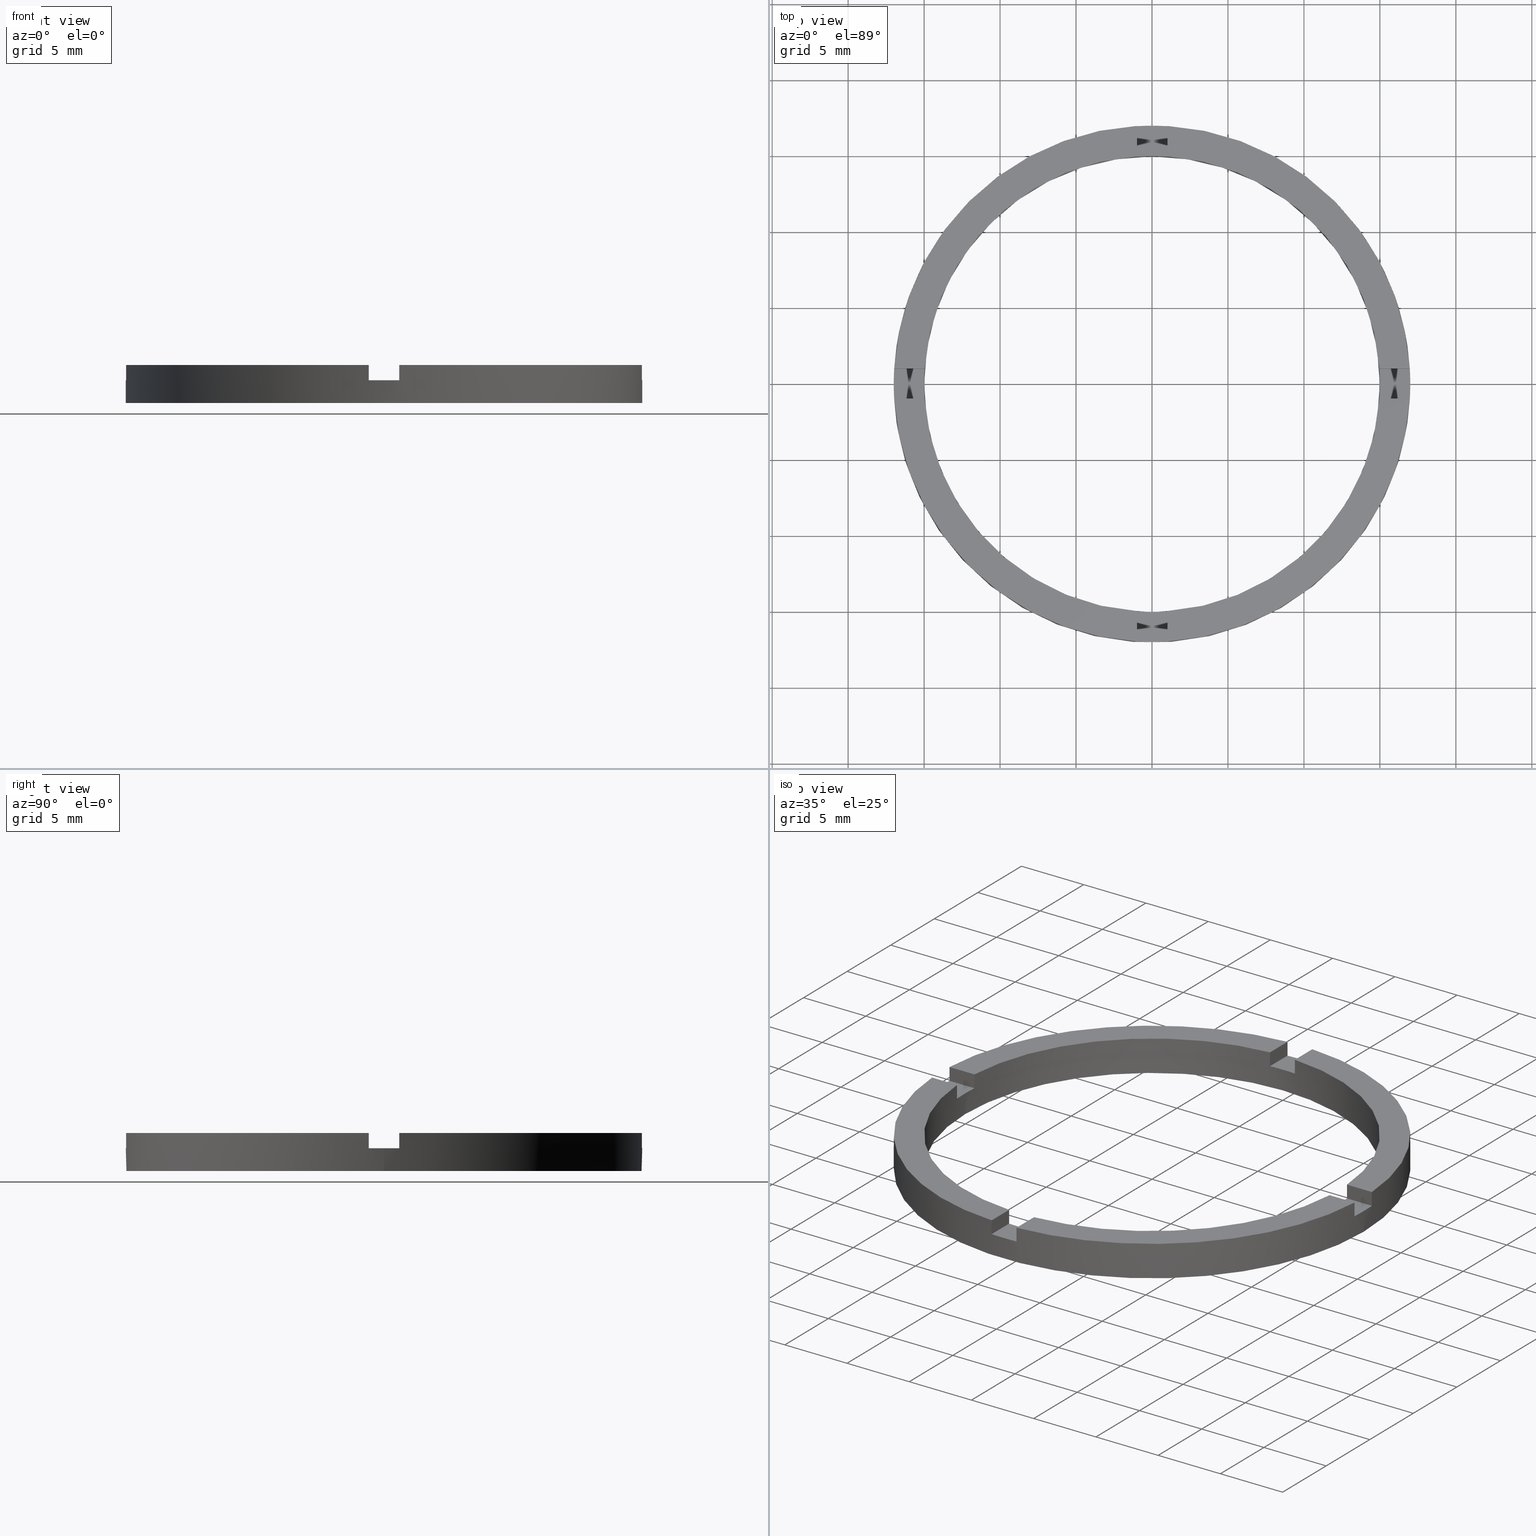
[diagram: canonical four-view strip — front | top / right | iso, engineering-drawing reading convention]
A machine part, canonical four-view strip (front | top / right | iso — engineering-drawing reading convention). The complete STEP part file that produces these views, byte-faithful:
ISO-10303-21;
HEADER;
FILE_DESCRIPTION (( 'STEP AP203' ),
    '1' );
FILE_NAME ('514073.step',
    '2024-12-26T02:34:58',
    ( 'MSI' ),
    ( '' ),
    'SwSTEP 2.0',
    'SolidWorks 2020',
    '' );
FILE_SCHEMA (( 'CONFIG_CONTROL_DESIGN' ));
ENDSEC;

DATA;
#1 = LOCAL_TIME ( 10, 34, 58.00000000000000000, #526 ) ;
#2 = EDGE_CURVE ( 'NONE', #630, #715, #52, .T. ) ;
#3 = DIRECTION ( 'NONE',  ( -1.000000000000000000, -1.301042606982605321E-16, 0.000000000000000000 ) ) ;
#4 = DIRECTION ( 'NONE',  ( -0.000000000000000000, -0.000000000000000000, -1.000000000000000000 ) ) ;
#5 = APPLICATION_CONTEXT ( 'configuration controlled 3d designs of mechanical parts and assemblies' ) ;
#6 = APPROVAL_DATE_TIME ( #518, #236 ) ;
#7 = CARTESIAN_POINT ( 'NONE',  ( -16.97056274847713908, -1.000000000000023759, 1.500000000000000000 ) ) ;
#8 = DIRECTION ( 'NONE',  ( 0.000000000000000000, 0.000000000000000000, 1.000000000000000000 ) ) ;
#9 = DIRECTION ( 'NONE',  ( 0.000000000000000000, 0.000000000000000000, 1.000000000000000000 ) ) ;
#10 = APPROVAL ( #648, 'δָ��' ) ;
#11 = DIRECTION ( 'NONE',  ( 1.000000000000000000, 0.000000000000000000, 0.000000000000000000 ) ) ;
#12 = SHAPE_DEFINITION_REPRESENTATION ( #156, #771 ) ;
#13 = DIRECTION ( 'NONE',  ( 0.000000000000000000, 0.000000000000000000, 1.000000000000000000 ) ) ;
#14 = DIRECTION ( 'NONE',  ( 0.000000000000000000, 0.000000000000000000, 1.000000000000000000 ) ) ;
#15 = PLANE ( 'NONE',  #451 ) ;
#16 = DIRECTION ( 'NONE',  ( -1.000000000000000000, -1.734723475976807341E-16, 0.000000000000000000 ) ) ;
#17 = PLANE ( 'NONE',  #248 ) ;
#18 = CARTESIAN_POINT ( 'NONE',  ( -14.96662954709576709, 0.9999999999999767963, 1.500000000000000000 ) ) ;
#19 = VECTOR ( 'NONE', #507, 1000.000000000000000 ) ;
#20 = DIRECTION ( 'NONE',  ( -1.000000000000000000, 0.000000000000000000, 0.000000000000000000 ) ) ;
#21 = VECTOR ( 'NONE', #522, 1000.000000000000000 ) ;
#22 = CARTESIAN_POINT ( 'NONE',  ( -16.97056274847714263, 0.9999999999999763522, 2.500000000000000000 ) ) ;
#23 = DIRECTION ( 'NONE',  ( 1.301042606982605321E-16, -1.000000000000000000, 0.000000000000000000 ) ) ;
#24 = VECTOR ( 'NONE', #137, 1000.000000000000000 ) ;
#25 = DIRECTION ( 'NONE',  ( 0.000000000000000000, 0.000000000000000000, 1.000000000000000000 ) ) ;
#26 = EDGE_CURVE ( 'NONE', #611, #609, #571, .T. ) ;
#27 = VECTOR ( 'NONE', #70, 1000.000000000000000 ) ;
#28 = LINE ( 'NONE', #677, #296 ) ;
#29 = CARTESIAN_POINT ( 'NONE',  ( -1.000000000000025091, 16.97056274847713908, 2.500000000000000000 ) ) ;
#30 = FACE_BOUND ( 'NONE', #736, .T. ) ;
#31 = CIRCLE ( 'NONE', #234, 17.00000000000000000 ) ;
#32 = DIRECTION ( 'NONE',  ( 0.000000000000000000, 0.000000000000000000, 1.000000000000000000 ) ) ;
#33 = AXIS2_PLACEMENT_3D ( 'NONE', #603, #13, #138 ) ;
#34 = VECTOR ( 'NONE', #84, 1000.000000000000000 ) ;
#35 = DIRECTION ( 'NONE',  ( -0.000000000000000000, -0.000000000000000000, -1.000000000000000000 ) ) ;
#36 = LINE ( 'NONE', #367, #27 ) ;
#37 = LINE ( 'NONE', #513, #19 ) ;
#38 = CIRCLE ( 'NONE', #264, 17.00000000000000000 ) ;
#39 = LINE ( 'NONE', #708, #556 ) ;
#40 = FACE_OUTER_BOUND ( 'NONE', #456, .T. ) ;
#41 = PLANE ( 'NONE',  #242 ) ;
#42 = CARTESIAN_POINT ( 'NONE',  ( 0.000000000000000000, 0.000000000000000000, 0.000000000000000000 ) ) ;
#43 = VECTOR ( 'NONE', #323, 1000.000000000000000 ) ;
#44 = CARTESIAN_POINT ( 'NONE',  ( -7.000000000000186517, -1.000000000000021982, 1.500000000000000000 ) ) ;
#45 = VECTOR ( 'NONE', #286, 1000.000000000000000 ) ;
#46 = VECTOR ( 'NONE', #653, 1000.000000000000000 ) ;
#47 = CARTESIAN_POINT ( 'NONE',  ( 6.999999999999995559, -1.000000000000159428, 2.500000000000000000 ) ) ;
#48 = FACE_OUTER_BOUND ( 'NONE', #428, .T. ) ;
#49 = LINE ( 'NONE', #692, #24 ) ;
#50 = PLANE ( 'NONE',  #134 ) ;
#51 = CIRCLE ( 'NONE', #279, 17.00000000000000000 ) ;
#52 = LINE ( 'NONE', #766, #305 ) ;
#53 = ADVANCED_FACE ( 'NONE', ( #59 ), #15, .T. ) ;
#54 = DIRECTION ( 'NONE',  ( 0.000000000000000000, -0.000000000000000000, 1.000000000000000000 ) ) ;
#55 = DATE_TIME_ROLE ( 'classification_date' ) ;
#56 = ORIENTED_EDGE ( 'NONE', *, *, #326, .T. ) ;
#57 = CC_DESIGN_DATE_AND_TIME_ASSIGNMENT ( #743, #68, ( #542 ) ) ;
#58 = ORIENTED_EDGE ( 'NONE', *, *, #751, .T. ) ;
#59 = FACE_OUTER_BOUND ( 'NONE', #741, .T. ) ;
#60 = CARTESIAN_POINT ( 'NONE',  ( 0.9999999999998363531, -7.000000000000181188, 1.500000000000000000 ) ) ;
#61 = DIRECTION ( 'NONE',  ( 0.000000000000000000, 0.000000000000000000, 1.000000000000000000 ) ) ;
#62 = PLANE ( 'NONE',  #253 ) ;
#63 = DIRECTION ( 'NONE',  ( 0.000000000000000000, 1.000000000000000000, 0.000000000000000000 ) ) ;
#64 = CARTESIAN_POINT ( 'NONE',  ( -15.00000000000000000, 0.000000000000000000, 0.000000000000000000 ) ) ;
#65 = CARTESIAN_POINT ( 'NONE',  ( 0.000000000000000000, 0.000000000000000000, 2.500000000000000000 ) ) ;
#66 = APPROVAL_ROLE ( '' ) ;
#67 = DIRECTION ( 'NONE',  ( 1.000000000000000000, 0.000000000000000000, 0.000000000000000000 ) ) ;
#68 = DATE_TIME_ROLE ( 'creation_date' ) ;
#69 = DIRECTION ( 'NONE',  ( 0.000000000000000000, 0.000000000000000000, 1.000000000000000000 ) ) ;
#70 = DIRECTION ( 'NONE',  ( 1.000000000000000000, 4.336808689942018352E-17, 0.000000000000000000 ) ) ;
#71 = CARTESIAN_POINT ( 'NONE',  ( -1.000000000000025091, 16.97056274847713908, 2.500000000000000000 ) ) ;
#72 = EDGE_CURVE ( 'NONE', #734, #190, #569, .T. ) ;
#73 = DIRECTION ( 'NONE',  ( 0.000000000000000000, -0.000000000000000000, 1.000000000000000000 ) ) ;
#74 = DIRECTION ( 'NONE',  ( -0.000000000000000000, -0.000000000000000000, -1.000000000000000000 ) ) ;
#75 = DIRECTION ( 'NONE',  ( 1.000000000000000000, 0.000000000000000000, -0.000000000000000000 ) ) ;
#76 = EDGE_CURVE ( 'NONE', #362, #347, #303, .T. ) ;
#77 = DIRECTION ( 'NONE',  ( 1.000000000000000000, 0.000000000000000000, 0.000000000000000000 ) ) ;
#78 = UNCERTAINTY_MEASURE_WITH_UNIT (LENGTH_MEASURE( 1.000000000000000082E-05 ), #333, 'distance_accuracy_value', 'NONE');
#79 = DIRECTION ( 'NONE',  ( -1.000000000000000000, 0.000000000000000000, 0.000000000000000000 ) ) ;
#80 =( GEOMETRIC_REPRESENTATION_CONTEXT ( 3 ) GLOBAL_UNCERTAINTY_ASSIGNED_CONTEXT ( ( #78 ) ) GLOBAL_UNIT_ASSIGNED_CONTEXT ( ( #333, #113, #402 ) ) REPRESENTATION_CONTEXT ( 'NONE', 'WORKASPACE' ) );
#81 = EDGE_CURVE ( 'NONE', #450, #469, #269, .T. ) ;
#82 = CARTESIAN_POINT ( 'NONE',  ( 14.96662954709575466, -1.000000000000158984, 2.500000000000000000 ) ) ;
#83 = EDGE_CURVE ( 'NONE', #468, #626, #28, .T. ) ;
#84 = DIRECTION ( 'NONE',  ( -0.000000000000000000, -0.000000000000000000, -1.000000000000000000 ) ) ;
#85 = CARTESIAN_POINT ( 'NONE',  ( 17.00000000000000000, 2.081899558550500280E-15, 1.500000000000000000 ) ) ;
#86 = AXIS2_PLACEMENT_3D ( 'NONE', #769, #150, #448 ) ;
#87 = DIRECTION ( 'NONE',  ( -0.000000000000000000, -0.000000000000000000, -1.000000000000000000 ) ) ;
#88 = DIRECTION ( 'NONE',  ( 1.000000000000000000, 0.000000000000000000, -0.000000000000000000 ) ) ;
#89 = ORIENTED_EDGE ( 'NONE', *, *, #592, .F. ) ;
#90 = AXIS2_PLACEMENT_3D ( 'NONE', #557, #599, #211 ) ;
#91 = ORIENTED_EDGE ( 'NONE', *, *, #76, .T. ) ;
#92 = EDGE_CURVE ( 'NONE', #157, #189, #49, .T. ) ;
#93 = ORIENTED_EDGE ( 'NONE', *, *, #263, .F. ) ;
#94 = AXIS2_PLACEMENT_3D ( 'NONE', #209, #511, #287 ) ;
#95 = ORIENTED_EDGE ( 'NONE', *, *, #733, .F. ) ;
#96 = DESIGN_CONTEXT ( 'detailed design', #5, 'design' ) ;
#97 = ORIENTED_EDGE ( 'NONE', *, *, #578, .T. ) ;
#98 = ORIENTED_EDGE ( 'NONE', *, *, #592, .T. ) ;
#99 = AXIS2_PLACEMENT_3D ( 'NONE', #268, #388, #704 ) ;
#100 = ORIENTED_EDGE ( 'NONE', *, *, #647, .F. ) ;
#101 = ORIENTED_EDGE ( 'NONE', *, *, #683, .T. ) ;
#102 = DIRECTION ( 'NONE',  ( -0.000000000000000000, 0.000000000000000000, 1.000000000000000000 ) ) ;
#103 = ORIENTED_EDGE ( 'NONE', *, *, #427, .F. ) ;
#104 = EDGE_CURVE ( 'NONE', #706, #215, #290, .T. ) ;
#105 = DIRECTION ( 'NONE',  ( 1.000000000000000000, 0.000000000000000000, -0.000000000000000000 ) ) ;
#106 = APPROVAL_STATUS ( 'not_yet_approved' ) ;
#107 = EDGE_LOOP ( 'NONE', ( #352, #180, #192, #179 ) ) ;
#108 = ORIENTED_EDGE ( 'NONE', *, *, #544, .T. ) ;
#109 = EDGE_CURVE ( 'NONE', #450, #365, #38, .T. ) ;
#110 = ORIENTED_EDGE ( 'NONE', *, *, #289, .T. ) ;
#111 = ORIENTED_EDGE ( 'NONE', *, *, #198, .F. ) ;
#112 = AXIS2_PLACEMENT_3D ( 'NONE', #748, #73, #685 ) ;
#113 =( NAMED_UNIT ( * ) PLANE_ANGLE_UNIT ( ) SI_UNIT ( $, .RADIAN. ) );
#114 = ORIENTED_EDGE ( 'NONE', *, *, #508, .T. ) ;
#115 = ORIENTED_EDGE ( 'NONE', *, *, #683, .F. ) ;
#116 = VERTEX_POINT ( 'NONE', #755 ) ;
#117 = CARTESIAN_POINT ( 'NONE',  ( -1.000000000000025091, 14.96662954709576354, 2.500000000000000000 ) ) ;
#118 = DIRECTION ( 'NONE',  ( 1.734723475976807341E-16, -1.000000000000000000, 0.000000000000000000 ) ) ;
#119 = EDGE_LOOP ( 'NONE', ( #746, #419, #492, #455 ) ) ;
#120 = DIRECTION ( 'NONE',  ( 0.000000000000000000, 0.000000000000000000, 1.000000000000000000 ) ) ;
#121 = ORIENTED_EDGE ( 'NONE', *, *, #334, .F. ) ;
#122 = ORIENTED_EDGE ( 'NONE', *, *, #104, .T. ) ;
#123 = VERTEX_POINT ( 'NONE', #310 ) ;
#124 = CARTESIAN_POINT ( 'NONE',  ( -1.000000000000025091, 14.96662954709576354, 1.500000000000000000 ) ) ;
#125 = CARTESIAN_POINT ( 'NONE',  ( -15.00000000000000000, 0.000000000000000000, 1.500000000000000000 ) ) ;
#126 = AXIS2_PLACEMENT_3D ( 'NONE', #191, #102, #250 ) ;
#127 = ORIENTED_EDGE ( 'NONE', *, *, #721, .F. ) ;
#128 = PERSON_AND_ORGANIZATION_ROLE ( 'design_supplier' ) ;
#129 = ORIENTED_EDGE ( 'NONE', *, *, #256, .F. ) ;
#130 = ORIENTED_EDGE ( 'NONE', *, *, #289, .F. ) ;
#131 = CARTESIAN_POINT ( 'NONE',  ( -1.000000000000163647, -7.000000000000181188, 2.500000000000000000 ) ) ;
#132 = DIRECTION ( 'NONE',  ( -0.000000000000000000, 0.000000000000000000, 1.000000000000000000 ) ) ;
#133 = CARTESIAN_POINT ( 'NONE',  ( -1.000000000000163647, -7.000000000000181188, 1.500000000000000000 ) ) ;
#134 = AXIS2_PLACEMENT_3D ( 'NONE', #770, #152, #88 ) ;
#135 = CARTESIAN_POINT ( 'NONE',  ( -1.000000000000162759, -14.96662954709575466, 2.500000000000000000 ) ) ;
#136 = CARTESIAN_POINT ( 'NONE',  ( 0.000000000000000000, 0.000000000000000000, 2.500000000000000000 ) ) ;
#137 = DIRECTION ( 'NONE',  ( -0.000000000000000000, -1.000000000000000000, -0.000000000000000000 ) ) ;
#138 = DIRECTION ( 'NONE',  ( 1.000000000000000000, 0.000000000000000000, 0.000000000000000000 ) ) ;
#139 = VECTOR ( 'NONE', #581, 1000.000000000000000 ) ;
#140 = LINE ( 'NONE', #200, #672 ) ;
#141 = AXIS2_PLACEMENT_3D ( 'NONE', #421, #545, #662 ) ;
#142 = DIRECTION ( 'NONE',  ( 1.000000000000000000, 0.000000000000000000, -0.000000000000000000 ) ) ;
#143 = FACE_OUTER_BOUND ( 'NONE', #622, .T. ) ;
#144 = EDGE_CURVE ( 'NONE', #611, #699, #534, .T. ) ;
#145 = DIRECTION ( 'NONE',  ( -1.000000000000000000, 0.000000000000000000, 0.000000000000000000 ) ) ;
#146 = FACE_OUTER_BOUND ( 'NONE', #195, .T. ) ;
#147 = EDGE_CURVE ( 'NONE', #630, #688, #280, .T. ) ;
#148 = AXIS2_PLACEMENT_3D ( 'NONE', #60, #399, #395 ) ;
#149 = VECTOR ( 'NONE', #595, 1000.000000000000000 ) ;
#150 = DIRECTION ( 'NONE',  ( 0.000000000000000000, 0.000000000000000000, 1.000000000000000000 ) ) ;
#151 = CIRCLE ( 'NONE', #94, 17.00000000000000000 ) ;
#152 = DIRECTION ( 'NONE',  ( 0.000000000000000000, 0.000000000000000000, 1.000000000000000000 ) ) ;
#153 = CIRCLE ( 'NONE', #423, 15.00000000000000000 ) ;
#154 = CYLINDRICAL_SURFACE ( 'NONE', #753, 15.00000000000000000 ) ;
#155 = ORIENTED_EDGE ( 'NONE', *, *, #582, .F. ) ;
#156 = PRODUCT_DEFINITION_SHAPE ( 'NONE', 'NONE',  #542 ) ;
#157 = VERTEX_POINT ( 'NONE', #29 ) ;
#158 = LINE ( 'NONE', #254, #411 ) ;
#159 = ADVANCED_FACE ( 'NONE', ( #48 ), #621, .F. ) ;
#160 = LINE ( 'NONE', #251, #678 ) ;
#161 = CIRCLE ( 'NONE', #593, 15.00000000000000000 ) ;
#162 = VERTEX_POINT ( 'NONE', #585 ) ;
#163 = LINE ( 'NONE', #735, #655 ) ;
#164 = ORIENTED_EDGE ( 'NONE', *, *, #565, .T. ) ;
#165 = FACE_OUTER_BOUND ( 'NONE', #107, .T. ) ;
#166 = ORIENTED_EDGE ( 'NONE', *, *, #670, .F. ) ;
#167 = ORIENTED_EDGE ( 'NONE', *, *, #598, .T. ) ;
#168 = CYLINDRICAL_SURFACE ( 'NONE', #523, 15.00000000000000000 ) ;
#169 = APPROVAL_STATUS ( 'not_yet_approved' ) ;
#170 = VECTOR ( 'NONE', #16, 1000.000000000000000 ) ;
#171 = AXIS2_PLACEMENT_3D ( 'NONE', #350, #244, #490 ) ;
#172 = LINE ( 'NONE', #304, #435 ) ;
#173 = PLANE ( 'NONE',  #171 ) ;
#174 = ORIENTED_EDGE ( 'NONE', *, *, #476, .F. ) ;
#175 = FACE_OUTER_BOUND ( 'NONE', #693, .T. ) ;
#176 = EDGE_CURVE ( 'NONE', #707, #215, #285, .T. ) ;
#177 = ORIENTED_EDGE ( 'NONE', *, *, #217, .F. ) ;
#178 = CARTESIAN_POINT ( 'NONE',  ( 0.000000000000000000, 0.000000000000000000, 2.500000000000000000 ) ) ;
#179 = ORIENTED_EDGE ( 'NONE', *, *, #326, .F. ) ;
#180 = ORIENTED_EDGE ( 'NONE', *, *, #83, .T. ) ;
#181 = EDGE_LOOP ( 'NONE', ( #726, #711, #95, #483 ) ) ;
#182 = ORIENTED_EDGE ( 'NONE', *, *, #144, .T. ) ;
#183 = ORIENTED_EDGE ( 'NONE', *, *, #488, .T. ) ;
#184 = DIRECTION ( 'NONE',  ( 1.000000000000000000, 1.734723475976807341E-16, 0.000000000000000000 ) ) ;
#185 = ORIENTED_EDGE ( 'NONE', *, *, #462, .T. ) ;
#186 = CARTESIAN_POINT ( 'NONE',  ( -17.00000000000000000, 0.000000000000000000, 1.500000000000000000 ) ) ;
#187 = EDGE_LOOP ( 'NONE', ( #372, #496, #166, #374 ) ) ;
#188 = PERSON_AND_ORGANIZATION_ROLE ( 'design_owner' ) ;
#189 = VERTEX_POINT ( 'NONE', #117 ) ;
#190 = VERTEX_POINT ( 'NONE', #124 ) ;
#191 = CARTESIAN_POINT ( 'NONE',  ( 0.000000000000000000, 0.000000000000000000, 1.500000000000000000 ) ) ;
#192 = ORIENTED_EDGE ( 'NONE', *, *, #530, .F. ) ;
#193 = PLANE ( 'NONE',  #497 ) ;
#194 = EDGE_CURVE ( 'NONE', #725, #709, #270, .T. ) ;
#195 = EDGE_LOOP ( 'NONE', ( #130, #643, #89, #58 ) ) ;
#196 = CC_DESIGN_PERSON_AND_ORGANIZATION_ASSIGNMENT ( #241, #128, ( #514 ) ) ;
#197 = ORIENTED_EDGE ( 'NONE', *, *, #768, .T. ) ;
#198 = EDGE_CURVE ( 'NONE', #443, #339, #31, .T. ) ;
#199 = EDGE_LOOP ( 'NONE', ( #93, #353, #110, #121 ) ) ;
#200 = CARTESIAN_POINT ( 'NONE',  ( 0.9999999999998363531, -7.000000000000181188, 1.500000000000000000 ) ) ;
#201 = EDGE_CURVE ( 'NONE', #354, #116, #540, .T. ) ;
#202 = VERTEX_POINT ( 'NONE', #332 ) ;
#203 = DIRECTION ( 'NONE',  ( 1.000000000000000000, 0.000000000000000000, 0.000000000000000000 ) ) ;
#204 = DIRECTION ( 'NONE',  ( 1.000000000000000000, -0.000000000000000000, 0.000000000000000000 ) ) ;
#205 = AXIS2_PLACEMENT_3D ( 'NONE', #555, #669, #368 ) ;
#206 = CARTESIAN_POINT ( 'NONE',  ( -16.97056274847713908, -1.000000000000023759, 2.500000000000000000 ) ) ;
#207 = ORIENTED_EDGE ( 'NONE', *, *, #258, .F. ) ;
#208 = AXIS2_PLACEMENT_3D ( 'NONE', #401, #470, #720 ) ;
#209 = CARTESIAN_POINT ( 'NONE',  ( 0.000000000000000000, 0.000000000000000000, 2.500000000000000000 ) ) ;
#210 = VERTEX_POINT ( 'NONE', #475 ) ;
#211 = DIRECTION ( 'NONE',  ( 1.000000000000000000, 0.000000000000000000, 0.000000000000000000 ) ) ;
#212 = CARTESIAN_POINT ( 'NONE',  ( -7.000000000000186517, 0.9999999999999781286, 1.500000000000000000 ) ) ;
#213 = EDGE_LOOP ( 'NONE', ( #607, #464, #467, #432 ) ) ;
#214 = CARTESIAN_POINT ( 'NONE',  ( 14.96662954709577775, 0.9999999999998411271, 2.500000000000000000 ) ) ;
#215 = VERTEX_POINT ( 'NONE', #718 ) ;
#216 = ORIENTED_EDGE ( 'NONE', *, *, #614, .F. ) ;
#217 = EDGE_CURVE ( 'NONE', #162, #636, #284, .T. ) ;
#218 = MANIFOLD_SOLID_BREP ( '�г�-����1', #438 ) ;
#219 = DATE_AND_TIME ( #506, #238 ) ;
#220 = DIRECTION ( 'NONE',  ( 0.000000000000000000, 0.000000000000000000, 1.000000000000000000 ) ) ;
#221 = COORDINATED_UNIVERSAL_TIME_OFFSET ( 8, 0, .AHEAD. ) ;
#222 = ORIENTED_EDGE ( 'NONE', *, *, #81, .F. ) ;
#223 = PERSON_AND_ORGANIZATION ( #576, #249 ) ;
#224 = APPROVAL_PERSON_ORGANIZATION ( #510, #645, #66 ) ;
#225 = ORIENTED_EDGE ( 'NONE', *, *, #721, .T. ) ;
#226 = COORDINATED_UNIVERSAL_TIME_OFFSET ( 8, 0, .AHEAD. ) ;
#227 = DIRECTION ( 'NONE',  ( 1.000000000000000000, 0.000000000000000000, 0.000000000000000000 ) ) ;
#228 = CC_DESIGN_PERSON_AND_ORGANIZATION_ASSIGNMENT ( #482, #295, ( #542 ) ) ;
#229 = PERSON_AND_ORGANIZATION ( #576, #249 ) ;
#230 = APPROVAL_DATE_TIME ( #765, #645 ) ;
#231 = ADVANCED_FACE ( 'NONE', ( #537 ), #173, .T. ) ;
#232 = ORIENTED_EDGE ( 'NONE', *, *, #768, .F. ) ;
#233 = COORDINATED_UNIVERSAL_TIME_OFFSET ( 8, 0, .AHEAD. ) ;
#234 = AXIS2_PLACEMENT_3D ( 'NONE', #299, #649, #11 ) ;
#235 = CALENDAR_DATE ( 2024, 26, 12 ) ;
#236 = APPROVAL ( #169, 'δָ��' ) ;
#237 = CARTESIAN_POINT ( 'NONE',  ( 0.000000000000000000, 0.000000000000000000, 0.000000000000000000 ) ) ;
#238 = LOCAL_TIME ( 10, 34, 58.00000000000000000, #742 ) ;
#239 = APPLICATION_PROTOCOL_DEFINITION ( 'international standard', 'config_control_design', 1994, #5 ) ;
#240 = PERSON_AND_ORGANIZATION ( #576, #249 ) ;
#241 = PERSON_AND_ORGANIZATION ( #576, #249 ) ;
#242 = AXIS2_PLACEMENT_3D ( 'NONE', #763, #145, #384 ) ;
#243 = LOCAL_TIME ( 10, 34, 58.00000000000000000, #221 ) ;
#244 = DIRECTION ( 'NONE',  ( 0.000000000000000000, -0.000000000000000000, 1.000000000000000000 ) ) ;
#245 = DIRECTION ( 'NONE',  ( 0.000000000000000000, 0.000000000000000000, 1.000000000000000000 ) ) ;
#246 = DIRECTION ( 'NONE',  ( 1.000000000000000000, 0.000000000000000000, 0.000000000000000000 ) ) ;
#247 = APPLICATION_PROTOCOL_DEFINITION ( 'international standard', 'config_control_design', 1994, #731 ) ;
#248 = AXIS2_PLACEMENT_3D ( 'NONE', #255, #204, #312 ) ;
#249 = ORGANIZATION ( 'δָ��', 'δָ��', '' ) ;
#250 = DIRECTION ( 'NONE',  ( 1.000000000000000000, 0.000000000000000000, 0.000000000000000000 ) ) ;
#251 = CARTESIAN_POINT ( 'NONE',  ( 0.9999999999998373523, -14.96662954709577775, 2.500000000000000000 ) ) ;
#252 = DIRECTION ( 'NONE',  ( -0.000000000000000000, -0.000000000000000000, -1.000000000000000000 ) ) ;
#253 = AXIS2_PLACEMENT_3D ( 'NONE', #178, #589, #340 ) ;
#254 = CARTESIAN_POINT ( 'NONE',  ( -1.000000000000025091, 7.000000000000000888, 1.500000000000000000 ) ) ;
#255 = CARTESIAN_POINT ( 'NONE',  ( 0.9999999999999749090, 7.000000000000000888, 1.500000000000000000 ) ) ;
#256 = EDGE_CURVE ( 'NONE', #189, #454, #559, .T. ) ;
#257 = CARTESIAN_POINT ( 'NONE',  ( 16.97056274847714974, 0.9999999999998411271, 1.500000000000000000 ) ) ;
#258 = EDGE_CURVE ( 'NONE', #365, #688, #554, .T. ) ;
#259 = CARTESIAN_POINT ( 'NONE',  ( -7.000000000000186517, -1.000000000000021982, 1.500000000000000000 ) ) ;
#260 = EDGE_CURVE ( 'NONE', #734, #706, #294, .T. ) ;
#261 = DIRECTION ( 'NONE',  ( -0.000000000000000000, -0.000000000000000000, -1.000000000000000000 ) ) ;
#262 = CARTESIAN_POINT ( 'NONE',  ( -1.000000000000025091, 14.96662954709576354, 2.500000000000000000 ) ) ;
#263 = EDGE_CURVE ( 'NONE', #444, #443, #36, .T. ) ;
#264 = AXIS2_PLACEMENT_3D ( 'NONE', #318, #69, #430 ) ;
#265 = DIRECTION ( 'NONE',  ( 1.000000000000000000, 0.000000000000000000, 0.000000000000000000 ) ) ;
#266 = FACE_OUTER_BOUND ( 'NONE', #213, .T. ) ;
#267 = VECTOR ( 'NONE', #63, 1000.000000000000000 ) ;
#268 = CARTESIAN_POINT ( 'NONE',  ( 0.000000000000000000, 0.000000000000000000, 0.000000000000000000 ) ) ;
#269 = LINE ( 'NONE', #22, #536 ) ;
#270 = CIRCLE ( 'NONE', #126, 17.00000000000000000 ) ;
#271 = DIRECTION ( 'NONE',  ( 1.000000000000000000, 1.734723475976807341E-16, -0.000000000000000000 ) ) ;
#272 = AXIS2_PLACEMENT_3D ( 'NONE', #324, #387, #463 ) ;
#273 = LINE ( 'NONE', #274, #546 ) ;
#274 = CARTESIAN_POINT ( 'NONE',  ( 6.999999999999995559, 0.9999999999998406830, 2.500000000000000000 ) ) ;
#275 = FACE_OUTER_BOUND ( 'NONE', #369, .T. ) ;
#276 = ADVANCED_FACE ( 'NONE', ( #561 ), #17, .F. ) ;
#277 = LINE ( 'NONE', #47, #45 ) ;
#278 = LINE ( 'NONE', #82, #281 ) ;
#279 = AXIS2_PLACEMENT_3D ( 'NONE', #618, #14, #203 ) ;
#280 = LINE ( 'NONE', #445, #34 ) ;
#281 = VECTOR ( 'NONE', #764, 1000.000000000000000 ) ;
#282 = VECTOR ( 'NONE', #8, 1000.000000000000000 ) ;
#283 = ADVANCED_FACE ( 'NONE', ( #275, #30 ), #520, .F. ) ;
#284 = LINE ( 'NONE', #781, #553 ) ;
#285 = LINE ( 'NONE', #590, #267 ) ;
#286 = DIRECTION ( 'NONE',  ( 1.000000000000000000, 4.336808689942018352E-17, 0.000000000000000000 ) ) ;
#287 = DIRECTION ( 'NONE',  ( 1.000000000000000000, 0.000000000000000000, 0.000000000000000000 ) ) ;
#288 = VECTOR ( 'NONE', #602, 1000.000000000000000 ) ;
#289 = EDGE_CURVE ( 'NONE', #481, #210, #277, .T. ) ;
#290 = LINE ( 'NONE', #516, #282 ) ;
#291 = LINE ( 'NONE', #650, #538 ) ;
#292 = DIRECTION ( 'NONE',  ( 0.000000000000000000, 0.000000000000000000, 1.000000000000000000 ) ) ;
#293 = CARTESIAN_POINT ( 'NONE',  ( -1.000000000000162537, -16.97056274847713198, 1.500000000000000000 ) ) ;
#294 = LINE ( 'NONE', #504, #288 ) ;
#295 = PERSON_AND_ORGANIZATION_ROLE ( 'creator' ) ;
#296 = VECTOR ( 'NONE', #383, 1000.000000000000000 ) ;
#297 = CIRCLE ( 'NONE', #700, 17.00000000000000000 ) ;
#298 = FACE_OUTER_BOUND ( 'NONE', #342, .T. ) ;
#299 = CARTESIAN_POINT ( 'NONE',  ( 0.000000000000000000, 0.000000000000000000, 1.500000000000000000 ) ) ;
#300 = DIRECTION ( 'NONE',  ( -0.000000000000000000, -1.000000000000000000, -0.000000000000000000 ) ) ;
#301 = CYLINDRICAL_SURFACE ( 'NONE', #528, 17.00000000000000000 ) ;
#302 = PERSON_AND_ORGANIZATION_ROLE ( 'classification_officer' ) ;
#303 = LINE ( 'NONE', #762, #552 ) ;
#304 = CARTESIAN_POINT ( 'NONE',  ( 6.999999999999995559, 0.9999999999998406830, 1.500000000000000000 ) ) ;
#305 = VECTOR ( 'NONE', #271, 1000.000000000000000 ) ;
#306 = DIRECTION ( 'NONE',  ( 0.000000000000000000, 0.000000000000000000, 1.000000000000000000 ) ) ;
#307 = ORIENTED_EDGE ( 'NONE', *, *, #775, .F. ) ;
#308 = VECTOR ( 'NONE', #261, 1000.000000000000000 ) ;
#309 = AXIS2_PLACEMENT_3D ( 'NONE', #491, #547, #591 ) ;
#310 = CARTESIAN_POINT ( 'NONE',  ( 16.97056274847714974, 0.9999999999998411271, 2.500000000000000000 ) ) ;
#311 = CARTESIAN_POINT ( 'NONE',  ( 0.9999999999999749090, 16.97056274847714263, 1.500000000000000000 ) ) ;
#312 = DIRECTION ( 'NONE',  ( 0.000000000000000000, 0.000000000000000000, -1.000000000000000000 ) ) ;
#313 = CARTESIAN_POINT ( 'NONE',  ( 0.9999999999999749090, 14.96662954709576709, 2.500000000000000000 ) ) ;
#314 = EDGE_CURVE ( 'NONE', #123, #468, #273, .T. ) ;
#315 = DIRECTION ( 'NONE',  ( 0.000000000000000000, 0.000000000000000000, 1.000000000000000000 ) ) ;
#316 = DIRECTION ( 'NONE',  ( 1.000000000000000000, 1.734723475976807341E-16, -0.000000000000000000 ) ) ;
#317 = CARTESIAN_POINT ( 'NONE',  ( 0.9999999999998373523, -14.96662954709577775, 2.500000000000000000 ) ) ;
#318 = CARTESIAN_POINT ( 'NONE',  ( 0.000000000000000000, 0.000000000000000000, 1.500000000000000000 ) ) ;
#319 = DIRECTION ( 'NONE',  ( 1.000000000000000000, 0.000000000000000000, 0.000000000000000000 ) ) ;
#320 = EDGE_CURVE ( 'NONE', #706, #202, #297, .T. ) ;
#321 = AXIS2_PLACEMENT_3D ( 'NONE', #777, #120, #659 ) ;
#322 = EDGE_CURVE ( 'NONE', #715, #699, #564, .T. ) ;
#323 = DIRECTION ( 'NONE',  ( -0.000000000000000000, -0.000000000000000000, -1.000000000000000000 ) ) ;
#324 = CARTESIAN_POINT ( 'NONE',  ( 6.999999999999995559, 0.9999999999998406830, 1.500000000000000000 ) ) ;
#325 = CARTESIAN_POINT ( 'NONE',  ( 14.96662954709575466, -1.000000000000158984, 2.500000000000000000 ) ) ;
#326 = EDGE_CURVE ( 'NONE', #123, #447, #39, .T. ) ;
#327 = ADVANCED_FACE ( 'NONE', ( #558 ), #694, .F. ) ;
#328 = CARTESIAN_POINT ( 'NONE',  ( -15.00000000000000000, 0.000000000000000000, 2.500000000000000000 ) ) ;
#329 = DIRECTION ( 'NONE',  ( -1.000000000000000000, -4.336808689942018352E-17, -0.000000000000000000 ) ) ;
#330 = CC_DESIGN_APPROVAL ( #236, ( #778 ) ) ;
#331 = ADVANCED_FACE ( 'NONE', ( #40 ), #639, .T. ) ;
#332 = CARTESIAN_POINT ( 'NONE',  ( -1.000000000000025091, 16.97056274847713908, 1.500000000000000000 ) ) ;
#333 =( LENGTH_UNIT ( ) NAMED_UNIT ( * ) SI_UNIT ( .MILLI., .METRE. ) );
#334 = EDGE_CURVE ( 'NONE', #443, #210, #291, .T. ) ;
#335 = ORIENTED_EDGE ( 'NONE', *, *, #598, .F. ) ;
#336 = DIRECTION ( 'NONE',  ( 0.000000000000000000, 0.000000000000000000, 1.000000000000000000 ) ) ;
#337 = EDGE_LOOP ( 'NONE', ( #197, #91, #703, #719, #182, #474, #344, #177, #167, #100, #623, #610 ) ) ;
#338 = DIRECTION ( 'NONE',  ( 0.000000000000000000, 0.000000000000000000, 1.000000000000000000 ) ) ;
#339 = VERTEX_POINT ( 'NONE', #85 ) ;
#340 = DIRECTION ( 'NONE',  ( 1.000000000000000000, 0.000000000000000000, -0.000000000000000000 ) ) ;
#341 = ORIENTED_EDGE ( 'NONE', *, *, #81, .T. ) ;
#342 = EDGE_LOOP ( 'NONE', ( #679, #111, #617, #575, #185, #631, #366, #307, #729, #207, #644, #738 ) ) ;
#343 = CARTESIAN_POINT ( 'NONE',  ( -14.96662954709576354, -1.000000000000023315, 1.500000000000000000 ) ) ;
#344 = ORIENTED_EDGE ( 'NONE', *, *, #716, .T. ) ;
#345 = CARTESIAN_POINT ( 'NONE',  ( 15.00000000000000000, 1.836970198721029589E-15, 1.500000000000000000 ) ) ;
#346 = VERTEX_POINT ( 'NONE', #385 ) ;
#347 = VERTEX_POINT ( 'NONE', #460 ) ;
#348 = EDGE_LOOP ( 'NONE', ( #757, #489, #499, #442, #633, #108 ) ) ;
#349 = CC_DESIGN_APPROVAL ( #645, ( #542 ) ) ;
#350 = CARTESIAN_POINT ( 'NONE',  ( 0.000000000000000000, 0.000000000000000000, 1.500000000000000000 ) ) ;
#351 = PLANE ( 'NONE',  #309 ) ;
#352 = ORIENTED_EDGE ( 'NONE', *, *, #314, .T. ) ;
#353 = ORIENTED_EDGE ( 'NONE', *, *, #437, .T. ) ;
#354 = VERTEX_POINT ( 'NONE', #408 ) ;
#355 = EDGE_CURVE ( 'NONE', #449, #481, #549, .T. ) ;
#356 = CARTESIAN_POINT ( 'NONE',  ( 0.000000000000000000, 0.000000000000000000, 1.500000000000000000 ) ) ;
#357 = ORIENTED_EDGE ( 'NONE', *, *, #600, .T. ) ;
#358 = DIRECTION ( 'NONE',  ( -0.000000000000000000, -0.000000000000000000, -1.000000000000000000 ) ) ;
#359 = DIRECTION ( 'NONE',  ( 1.000000000000000000, 0.000000000000000000, 0.000000000000000000 ) ) ;
#360 = CARTESIAN_POINT ( 'NONE',  ( 0.9999999999998375744, -16.97056274847715329, 2.500000000000000000 ) ) ;
#361 = ORIENTED_EDGE ( 'NONE', *, *, #548, .F. ) ;
#362 = VERTEX_POINT ( 'NONE', #345 ) ;
#363 = CARTESIAN_POINT ( 'NONE',  ( -16.97056274847714263, 0.9999999999999763522, 1.500000000000000000 ) ) ;
#364 = AXIS2_PLACEMENT_3D ( 'NONE', #722, #132, #67 ) ;
#365 = VERTEX_POINT ( 'NONE', #186 ) ;
#366 = ORIENTED_EDGE ( 'NONE', *, *, #476, .T. ) ;
#367 = CARTESIAN_POINT ( 'NONE',  ( 6.999999999999995559, -1.000000000000159428, 1.500000000000000000 ) ) ;
#368 = DIRECTION ( 'NONE',  ( 1.000000000000000000, 0.000000000000000000, 0.000000000000000000 ) ) ;
#369 = EDGE_LOOP ( 'NONE', ( #625, #115 ) ) ;
#370 = ORIENTED_EDGE ( 'NONE', *, *, #412, .T. ) ;
#371 = CARTESIAN_POINT ( 'NONE',  ( 14.96662954709575466, -1.000000000000158984, 1.500000000000000000 ) ) ;
#372 = ORIENTED_EDGE ( 'NONE', *, *, #92, .T. ) ;
#373 = DIRECTION ( 'NONE',  ( 1.000000000000000000, 0.000000000000000000, 0.000000000000000000 ) ) ;
#374 = ORIENTED_EDGE ( 'NONE', *, *, #600, .F. ) ;
#375 = CARTESIAN_POINT ( 'NONE',  ( 0.9999999999999749090, 14.96662954709576709, 1.500000000000000000 ) ) ;
#376 = VERTEX_POINT ( 'NONE', #417 ) ;
#377 = ORIENTED_EDGE ( 'NONE', *, *, #548, .T. ) ;
#378 = CARTESIAN_POINT ( 'NONE',  ( -14.96662954709576709, 0.9999999999999767963, 2.500000000000000000 ) ) ;
#379 = ORIENTED_EDGE ( 'NONE', *, *, #76, .F. ) ;
#380 = ORIENTED_EDGE ( 'NONE', *, *, #109, .F. ) ;
#381 = CARTESIAN_POINT ( 'NONE',  ( -16.97056274847714263, 0.9999999999999763522, 2.500000000000000000 ) ) ;
#382 = AXIS2_PLACEMENT_3D ( 'NONE', #42, #580, #632 ) ;
#383 = DIRECTION ( 'NONE',  ( -0.000000000000000000, -0.000000000000000000, -1.000000000000000000 ) ) ;
#384 = DIRECTION ( 'NONE',  ( 0.000000000000000000, 0.000000000000000000, 1.000000000000000000 ) ) ;
#385 = CARTESIAN_POINT ( 'NONE',  ( -1.000000000000162537, -16.97056274847713198, 2.500000000000000000 ) ) ;
#386 = EDGE_CURVE ( 'NONE', #454, #469, #543, .T. ) ;
#387 = DIRECTION ( 'NONE',  ( -4.336808689942018352E-17, 1.000000000000000000, 0.000000000000000000 ) ) ;
#388 = DIRECTION ( 'NONE',  ( 0.000000000000000000, 0.000000000000000000, 1.000000000000000000 ) ) ;
#389 = CIRCLE ( 'NONE', #465, 17.00000000000000000 ) ;
#390 = ADVANCED_FACE ( 'NONE', ( #298 ), #301, .T. ) ;
#391 = CC_DESIGN_PERSON_AND_ORGANIZATION_ASSIGNMENT ( #229, #188, ( #588 ) ) ;
#392 = LINE ( 'NONE', #44, #675 ) ;
#393 = EDGE_CURVE ( 'NONE', #123, #215, #541, .T. ) ;
#394 = CIRCLE ( 'NONE', #400, 17.00000000000000000 ) ;
#395 = DIRECTION ( 'NONE',  ( -1.301042606982605321E-16, 1.000000000000000000, 0.000000000000000000 ) ) ;
#396 = LINE ( 'NONE', #131, #684 ) ;
#397 = VECTOR ( 'NONE', #23, 1000.000000000000000 ) ;
#398 = VECTOR ( 'NONE', #87, 1000.000000000000000 ) ;
#399 = DIRECTION ( 'NONE',  ( 1.000000000000000000, 1.301042606982605321E-16, 0.000000000000000000 ) ) ;
#400 = AXIS2_PLACEMENT_3D ( 'NONE', #539, #405, #674 ) ;
#401 = CARTESIAN_POINT ( 'NONE',  ( -7.000000000000186517, 0.9999999999999781286, 1.500000000000000000 ) ) ;
#402 =( NAMED_UNIT ( * ) SI_UNIT ( $, .STERADIAN. ) SOLID_ANGLE_UNIT ( ) );
#403 = LINE ( 'NONE', #71, #149 ) ;
#404 = FACE_OUTER_BOUND ( 'NONE', #337, .T. ) ;
#405 = DIRECTION ( 'NONE',  ( 0.000000000000000000, 0.000000000000000000, 1.000000000000000000 ) ) ;
#406 = AXIS2_PLACEMENT_3D ( 'NONE', #594, #292, #727 ) ;
#407 = CYLINDRICAL_SURFACE ( 'NONE', #567, 17.00000000000000000 ) ;
#408 = CARTESIAN_POINT ( 'NONE',  ( -17.00000000000000000, 0.000000000000000000, 0.000000000000000000 ) ) ;
#409 = MECHANICAL_CONTEXT ( 'NONE', #731, 'mechanical' ) ;
#410 = CIRCLE ( 'NONE', #33, 15.00000000000000000 ) ;
#411 = VECTOR ( 'NONE', #300, 1000.000000000000000 ) ;
#412 = EDGE_CURVE ( 'NONE', #686, #611, #566, .T. ) ;
#413 = CIRCLE ( 'NONE', #364, 15.00000000000000000 ) ;
#414 = CARTESIAN_POINT ( 'NONE',  ( 0.9999999999998375744, -16.97056274847715329, 1.500000000000000000 ) ) ;
#415 = EDGE_LOOP ( 'NONE', ( #127, #640, #101, #471, #380, #341, #103, #357, #638, #122, #573, #56 ) ) ;
#416 = VECTOR ( 'NONE', #597, 1000.000000000000000 ) ;
#417 = CARTESIAN_POINT ( 'NONE',  ( 0.9999999999998373523, -14.96662954709577775, 1.500000000000000000 ) ) ;
#418 = FACE_OUTER_BOUND ( 'NONE', #199, .T. ) ;
#419 = ORIENTED_EDGE ( 'NONE', *, *, #670, .T. ) ;
#420 = CIRCLE ( 'NONE', #205, 15.00000000000000000 ) ;
#421 = CARTESIAN_POINT ( 'NONE',  ( 0.000000000000000000, 0.000000000000000000, 0.000000000000000000 ) ) ;
#422 = LINE ( 'NONE', #133, #397 ) ;
#423 = AXIS2_PLACEMENT_3D ( 'NONE', #749, #9, #319 ) ;
#424 = DIRECTION ( 'NONE',  ( 1.301042606982605321E-16, -1.000000000000000000, 0.000000000000000000 ) ) ;
#425 = LINE ( 'NONE', #441, #416 ) ;
#426 = FACE_OUTER_BOUND ( 'NONE', #187, .T. ) ;
#427 = EDGE_CURVE ( 'NONE', #157, #469, #51, .T. ) ;
#428 = EDGE_LOOP ( 'NONE', ( #98, #752, #620, #613 ) ) ;
#429 = FACE_OUTER_BOUND ( 'NONE', #628, .T. ) ;
#430 = DIRECTION ( 'NONE',  ( 1.000000000000000000, 0.000000000000000000, 0.000000000000000000 ) ) ;
#431 = DIRECTION ( 'NONE',  ( 1.301042606982605321E-16, -1.000000000000000000, 0.000000000000000000 ) ) ;
#432 = ORIENTED_EDGE ( 'NONE', *, *, #775, .T. ) ;
#433 = LINE ( 'NONE', #212, #170 ) ;
#434 = ORIENTED_EDGE ( 'NONE', *, *, #176, .T. ) ;
#435 = VECTOR ( 'NONE', #446, 1000.000000000000000 ) ;
#436 = VECTOR ( 'NONE', #629, 1000.000000000000000 ) ;
#437 = EDGE_CURVE ( 'NONE', #444, #481, #278, .T. ) ;
#438 = CLOSED_SHELL ( 'NONE', ( #646, #779, #524, #331, #783, #466, #283, #390, #527, #637, #327, #532, #159, #651, #53, #773, #710, #587, #583, #276, #231 ) ) ;
#439 = DIRECTION ( 'NONE',  ( 0.000000000000000000, 0.000000000000000000, 1.000000000000000000 ) ) ;
#440 = ORIENTED_EDGE ( 'NONE', *, *, #83, .F. ) ;
#441 = CARTESIAN_POINT ( 'NONE',  ( 0.9999999999998363531, -7.000000000000181188, 2.500000000000000000 ) ) ;
#442 = ORIENTED_EDGE ( 'NONE', *, *, #144, .F. ) ;
#443 = VERTEX_POINT ( 'NONE', #680 ) ;
#444 = VERTEX_POINT ( 'NONE', #371 ) ;
#445 = CARTESIAN_POINT ( 'NONE',  ( -16.97056274847713908, -1.000000000000023759, 2.500000000000000000 ) ) ;
#446 = DIRECTION ( 'NONE',  ( -1.000000000000000000, -4.336808689942018352E-17, -0.000000000000000000 ) ) ;
#447 = VERTEX_POINT ( 'NONE', #257 ) ;
#448 = DIRECTION ( 'NONE',  ( 1.000000000000000000, 0.000000000000000000, 0.000000000000000000 ) ) ;
#449 = VERTEX_POINT ( 'NONE', #317 ) ;
#450 = VERTEX_POINT ( 'NONE', #363 ) ;
#451 = AXIS2_PLACEMENT_3D ( 'NONE', #560, #673, #601 ) ;
#452 = EDGE_LOOP ( 'NONE', ( #744, #183, #494, #222 ) ) ;
#453 = PLANE ( 'NONE',  #660 ) ;
#454 = VERTEX_POINT ( 'NONE', #378 ) ;
#455 = ORIENTED_EDGE ( 'NONE', *, *, #260, .T. ) ;
#456 = EDGE_LOOP ( 'NONE', ( #605, #698, #627, #477 ) ) ;
#457 = ORIENTED_EDGE ( 'NONE', *, *, #530, .T. ) ;
#458 = ORIENTED_EDGE ( 'NONE', *, *, #26, .T. ) ;
#459 = ORIENTED_EDGE ( 'NONE', *, *, #263, .T. ) ;
#460 = CARTESIAN_POINT ( 'NONE',  ( 15.00000000000000000, 1.836970198721029589E-15, 0.000000000000000000 ) ) ;
#461 = ORIENTED_EDGE ( 'NONE', *, *, #92, .F. ) ;
#462 = EDGE_CURVE ( 'NONE', #713, #709, #37, .T. ) ;
#463 = DIRECTION ( 'NONE',  ( -1.000000000000000000, -4.336808689942018352E-17, 0.000000000000000000 ) ) ;
#464 = ORIENTED_EDGE ( 'NONE', *, *, #716, .F. ) ;
#465 = AXIS2_PLACEMENT_3D ( 'NONE', #509, #25, #77 ) ;
#466 = ADVANCED_FACE ( 'NONE', ( #266 ), #758, .T. ) ;
#467 = ORIENTED_EDGE ( 'NONE', *, *, #2, .F. ) ;
#468 = VERTEX_POINT ( 'NONE', #214 ) ;
#469 = VERTEX_POINT ( 'NONE', #381 ) ;
#470 = DIRECTION ( 'NONE',  ( -1.734723475976807341E-16, 1.000000000000000000, 0.000000000000000000 ) ) ;
#471 = ORIENTED_EDGE ( 'NONE', *, *, #774, .F. ) ;
#472 = SECURITY_CLASSIFICATION_LEVEL ( 'unclassified' ) ;
#473 = CC_DESIGN_APPROVAL ( #10, ( #514 ) ) ;
#474 = ORIENTED_EDGE ( 'NONE', *, *, #322, .F. ) ;
#475 = CARTESIAN_POINT ( 'NONE',  ( 16.97056274847713198, -1.000000000000158984, 2.500000000000000000 ) ) ;
#476 = EDGE_CURVE ( 'NONE', #725, #346, #533, .T. ) ;
#477 = ORIENTED_EDGE ( 'NONE', *, *, #393, .T. ) ;
#478 = PERSON_AND_ORGANIZATION ( #576, #249 ) ;
#479 = DIRECTION ( 'NONE',  ( 0.000000000000000000, 0.000000000000000000, 1.000000000000000000 ) ) ;
#480 = PERSON_AND_ORGANIZATION_ROLE ( 'creator' ) ;
#481 = VERTEX_POINT ( 'NONE', #325 ) ;
#482 = PERSON_AND_ORGANIZATION ( #576, #249 ) ;
#483 = ORIENTED_EDGE ( 'NONE', *, *, #147, .F. ) ;
#484 = CALENDAR_DATE ( 2024, 26, 12 ) ;
#485 = DIRECTION ( 'NONE',  ( -1.000000000000000000, 0.000000000000000000, 0.000000000000000000 ) ) ;
#486 = ORIENTED_EDGE ( 'NONE', *, *, #705, .T. ) ;
#487 = APPROVAL_PERSON_ORGANIZATION ( #223, #236, #531 ) ;
#488 = EDGE_CURVE ( 'NONE', #686, #454, #696, .T. ) ;
#489 = ORIENTED_EDGE ( 'NONE', *, *, #258, .T. ) ;
#490 = DIRECTION ( 'NONE',  ( 1.000000000000000000, 0.000000000000000000, -0.000000000000000000 ) ) ;
#491 = CARTESIAN_POINT ( 'NONE',  ( 6.999999999999995559, -1.000000000000159428, 1.500000000000000000 ) ) ;
#492 = ORIENTED_EDGE ( 'NONE', *, *, #72, .F. ) ;
#493 = PRODUCT_RELATED_PRODUCT_CATEGORY ( 'detail', '', ( #588 ) ) ;
#494 = ORIENTED_EDGE ( 'NONE', *, *, #386, .T. ) ;
#495 = ORIENTED_EDGE ( 'NONE', *, *, #194, .T. ) ;
#496 = ORIENTED_EDGE ( 'NONE', *, *, #730, .T. ) ;
#497 = AXIS2_PLACEMENT_3D ( 'NONE', #608, #3, #424 ) ;
#498 = DIRECTION ( 'NONE',  ( -1.301042606982605321E-16, 1.000000000000000000, -0.000000000000000000 ) ) ;
#499 = ORIENTED_EDGE ( 'NONE', *, *, #733, .T. ) ;
#500 = LOCAL_TIME ( 10, 34, 58.00000000000000000, #233 ) ;
#501 = CALENDAR_DATE ( 2024, 26, 12 ) ;
#502 = AXIS2_PLACEMENT_3D ( 'NONE', #136, #551, #265 ) ;
#503 = APPROVAL_PERSON_ORGANIZATION ( #478, #10, #714 ) ;
#504 = CARTESIAN_POINT ( 'NONE',  ( 0.9999999999999749090, 7.000000000000000888, 1.500000000000000000 ) ) ;
#505 = CARTESIAN_POINT ( 'NONE',  ( -14.96662954709576354, -1.000000000000023315, 2.500000000000000000 ) ) ;
#506 = CALENDAR_DATE ( 2024, 26, 12 ) ;
#507 = DIRECTION ( 'NONE',  ( -0.000000000000000000, -0.000000000000000000, -1.000000000000000000 ) ) ;
#508 = EDGE_CURVE ( 'NONE', #609, #347, #691, .T. ) ;
#509 = CARTESIAN_POINT ( 'NONE',  ( 0.000000000000000000, 0.000000000000000000, 1.500000000000000000 ) ) ;
#510 = PERSON_AND_ORGANIZATION ( #576, #249 ) ;
#511 = DIRECTION ( 'NONE',  ( 0.000000000000000000, 0.000000000000000000, 1.000000000000000000 ) ) ;
#512 = CARTESIAN_POINT ( 'NONE',  ( 0.000000000000000000, 0.000000000000000000, 1.500000000000000000 ) ) ;
#513 = CARTESIAN_POINT ( 'NONE',  ( 0.9999999999998375744, -16.97056274847715329, 2.500000000000000000 ) ) ;
#514 = PRODUCT_DEFINITION_FORMATION_WITH_SPECIFIED_SOURCE ( '�κ�', '', #588, .NOT_KNOWN. ) ;
#515 = AXIS2_PLACEMENT_3D ( 'NONE', #356, #315, #373 ) ;
#516 = CARTESIAN_POINT ( 'NONE',  ( 0.9999999999999749090, 16.97056274847714263, 2.500000000000000000 ) ) ;
#517 = DIRECTION ( 'NONE',  ( -0.000000000000000000, -0.000000000000000000, -1.000000000000000000 ) ) ;
#518 = DATE_AND_TIME ( #529, #1 ) ;
#519 = CARTESIAN_POINT ( 'NONE',  ( -14.96662954709576709, 0.9999999999999767963, 2.500000000000000000 ) ) ;
#520 = PLANE ( 'NONE',  #382 ) ;
#521 = CARTESIAN_POINT ( 'NONE',  ( -17.00000000000000000, 0.000000000000000000, 2.500000000000000000 ) ) ;
#522 = DIRECTION ( 'NONE',  ( 0.000000000000000000, 0.000000000000000000, 1.000000000000000000 ) ) ;
#523 = AXIS2_PLACEMENT_3D ( 'NONE', #579, #358, #79 ) ;
#524 = ADVANCED_FACE ( 'NONE', ( #175 ), #50, .T. ) ;
#525 = DIRECTION ( 'NONE',  ( -1.000000000000000000, 0.000000000000000000, 0.000000000000000000 ) ) ;
#526 = COORDINATED_UNIVERSAL_TIME_OFFSET ( 8, 0, .AHEAD. ) ;
#527 = ADVANCED_FACE ( 'NONE', ( #429 ), #168, .F. ) ;
#528 = AXIS2_PLACEMENT_3D ( 'NONE', #723, #4, #20 ) ;
#529 = CALENDAR_DATE ( 2024, 26, 12 ) ;
#530 = EDGE_CURVE ( 'NONE', #447, #626, #172, .T. ) ;
#531 = APPROVAL_ROLE ( '' ) ;
#532 = ADVANCED_FACE ( 'NONE', ( #689 ), #606, .T. ) ;
#533 = LINE ( 'NONE', #635, #21 ) ;
#534 = CIRCLE ( 'NONE', #515, 15.00000000000000000 ) ;
#535 = CARTESIAN_POINT ( 'NONE',  ( -7.000000000000186517, 0.9999999999999781286, 2.500000000000000000 ) ) ;
#536 = VECTOR ( 'NONE', #612, 1000.000000000000000 ) ;
#537 = FACE_OUTER_BOUND ( 'NONE', #119, .T. ) ;
#538 = VECTOR ( 'NONE', #220, 1000.000000000000000 ) ;
#539 = CARTESIAN_POINT ( 'NONE',  ( 0.000000000000000000, 0.000000000000000000, 0.000000000000000000 ) ) ;
#540 = CIRCLE ( 'NONE', #562, 17.00000000000000000 ) ;
#541 = CIRCLE ( 'NONE', #502, 17.00000000000000000 ) ;
#542 = PRODUCT_DEFINITION ( 'δ֪', '', #514, #96 ) ;
#543 = LINE ( 'NONE', #535, #46 ) ;
#544 = EDGE_CURVE ( 'NONE', #686, #450, #433, .T. ) ;
#545 = DIRECTION ( 'NONE',  ( 0.000000000000000000, 0.000000000000000000, 1.000000000000000000 ) ) ;
#546 = VECTOR ( 'NONE', #329, 1000.000000000000000 ) ;
#547 = DIRECTION ( 'NONE',  ( 4.336808689942018352E-17, -1.000000000000000000, 0.000000000000000000 ) ) ;
#548 = EDGE_CURVE ( 'NONE', #347, #609, #668, .T. ) ;
#549 = CIRCLE ( 'NONE', #782, 15.00000000000000000 ) ;
#550 = CC_DESIGN_PERSON_AND_ORGANIZATION_ASSIGNMENT ( #767, #302, ( #778 ) ) ;
#551 = DIRECTION ( 'NONE',  ( 0.000000000000000000, 0.000000000000000000, 1.000000000000000000 ) ) ;
#552 = VECTOR ( 'NONE', #35, 1000.000000000000000 ) ;
#553 = VECTOR ( 'NONE', #61, 1000.000000000000000 ) ;
#554 = CIRCLE ( 'NONE', #759, 17.00000000000000000 ) ;
#555 = CARTESIAN_POINT ( 'NONE',  ( 0.000000000000000000, 0.000000000000000000, 2.500000000000000000 ) ) ;
#556 = VECTOR ( 'NONE', #517, 1000.000000000000000 ) ;
#557 = CARTESIAN_POINT ( 'NONE',  ( 0.000000000000000000, 0.000000000000000000, 1.500000000000000000 ) ) ;
#558 = FACE_OUTER_BOUND ( 'NONE', #452, .T. ) ;
#559 = CIRCLE ( 'NONE', #406, 15.00000000000000000 ) ;
#560 = CARTESIAN_POINT ( 'NONE',  ( 0.000000000000000000, 0.000000000000000000, 1.500000000000000000 ) ) ;
#561 = FACE_OUTER_BOUND ( 'NONE', #702, .T. ) ;
#562 = AXIS2_PLACEMENT_3D ( 'NONE', #237, #656, #227 ) ;
#563 = CARTESIAN_POINT ( 'NONE',  ( 0.000000000000000000, 0.000000000000000000, 2.500000000000000000 ) ) ;
#564 = LINE ( 'NONE', #586, #43 ) ;
#565 = EDGE_CURVE ( 'NONE', #636, #346, #396, .T. ) ;
#566 = CIRCLE ( 'NONE', #90, 15.00000000000000000 ) ;
#567 = AXIS2_PLACEMENT_3D ( 'NONE', #724, #252, #525 ) ;
#568 = DIRECTION ( 'NONE',  ( 0.000000000000000000, 0.000000000000000000, 1.000000000000000000 ) ) ;
#569 = CIRCLE ( 'NONE', #112, 15.00000000000000000 ) ;
#570 = ORIENTED_EDGE ( 'NONE', *, *, #427, .T. ) ;
#571 = LINE ( 'NONE', #328, #308 ) ;
#572 = CARTESIAN_POINT ( 'NONE',  ( 0.000000000000000000, 0.000000000000000000, 1.500000000000000000 ) ) ;
#573 = ORIENTED_EDGE ( 'NONE', *, *, #393, .F. ) ;
#574 = AXIS2_PLACEMENT_3D ( 'NONE', #624, #32, #142 ) ;
#575 = ORIENTED_EDGE ( 'NONE', *, *, #751, .F. ) ;
#576 = PERSON ( 'δָ��', 'δָ��', 'δָ��', ('δָ��'), ('δָ��'), ('δָ��') ) ;
#577 = EDGE_CURVE ( 'NONE', #339, #116, #163, .T. ) ;
#578 = EDGE_CURVE ( 'NONE', #362, #626, #153, .T. ) ;
#579 = CARTESIAN_POINT ( 'NONE',  ( 0.000000000000000000, 0.000000000000000000, 2.500000000000000000 ) ) ;
#580 = DIRECTION ( 'NONE',  ( 0.000000000000000000, 0.000000000000000000, 1.000000000000000000 ) ) ;
#581 = DIRECTION ( 'NONE',  ( -0.000000000000000000, -0.000000000000000000, -1.000000000000000000 ) ) ;
#582 = EDGE_CURVE ( 'NONE', #162, #725, #422, .T. ) ;
#583 = ADVANCED_FACE ( 'NONE', ( #426 ), #41, .F. ) ;
#584 = CC_DESIGN_DATE_AND_TIME_ASSIGNMENT ( #747, #55, ( #778 ) ) ;
#585 = CARTESIAN_POINT ( 'NONE',  ( -1.000000000000162759, -14.96662954709575466, 1.500000000000000000 ) ) ;
#586 = CARTESIAN_POINT ( 'NONE',  ( -14.96662954709576354, -1.000000000000023315, 2.500000000000000000 ) ) ;
#587 = ADVANCED_FACE ( 'NONE', ( #143 ), #453, .T. ) ;
#588 = PRODUCT ( '514073', '514073', '', ( #409 ) ) ;
#589 = DIRECTION ( 'NONE',  ( 0.000000000000000000, 0.000000000000000000, 1.000000000000000000 ) ) ;
#590 = CARTESIAN_POINT ( 'NONE',  ( 0.9999999999999749090, 7.000000000000000888, 2.500000000000000000 ) ) ;
#591 = DIRECTION ( 'NONE',  ( 1.000000000000000000, 4.336808689942018352E-17, 0.000000000000000000 ) ) ;
#592 = EDGE_CURVE ( 'NONE', #713, #449, #425, .T. ) ;
#593 = AXIS2_PLACEMENT_3D ( 'NONE', #512, #568, #615 ) ;
#594 = CARTESIAN_POINT ( 'NONE',  ( 0.000000000000000000, 0.000000000000000000, 2.500000000000000000 ) ) ;
#595 = DIRECTION ( 'NONE',  ( -0.000000000000000000, -0.000000000000000000, -1.000000000000000000 ) ) ;
#596 = CARTESIAN_POINT ( 'NONE',  ( 0.000000000000000000, 0.000000000000000000, 1.500000000000000000 ) ) ;
#597 = DIRECTION ( 'NONE',  ( -1.301042606982605321E-16, 1.000000000000000000, -0.000000000000000000 ) ) ;
#598 = EDGE_CURVE ( 'NONE', #162, #376, #413, .T. ) ;
#599 = DIRECTION ( 'NONE',  ( 0.000000000000000000, 0.000000000000000000, 1.000000000000000000 ) ) ;
#600 = EDGE_CURVE ( 'NONE', #157, #202, #403, .T. ) ;
#601 = DIRECTION ( 'NONE',  ( 1.000000000000000000, 0.000000000000000000, 0.000000000000000000 ) ) ;
#602 = DIRECTION ( 'NONE',  ( 0.000000000000000000, 1.000000000000000000, 0.000000000000000000 ) ) ;
#603 = CARTESIAN_POINT ( 'NONE',  ( 0.000000000000000000, 0.000000000000000000, 2.500000000000000000 ) ) ;
#604 = ORIENTED_EDGE ( 'NONE', *, *, #488, .F. ) ;
#605 = ORIENTED_EDGE ( 'NONE', *, *, #176, .F. ) ;
#606 = PLANE ( 'NONE',  #654 ) ;
#607 = ORIENTED_EDGE ( 'NONE', *, *, #565, .F. ) ;
#608 = CARTESIAN_POINT ( 'NONE',  ( -1.000000000000163647, -7.000000000000181188, 1.500000000000000000 ) ) ;
#609 = VERTEX_POINT ( 'NONE', #64 ) ;
#610 = ORIENTED_EDGE ( 'NONE', *, *, #437, .F. ) ;
#611 = VERTEX_POINT ( 'NONE', #125 ) ;
#612 = DIRECTION ( 'NONE',  ( 0.000000000000000000, 0.000000000000000000, 1.000000000000000000 ) ) ;
#613 = ORIENTED_EDGE ( 'NONE', *, *, #462, .F. ) ;
#614 = EDGE_CURVE ( 'NONE', #734, #707, #671, .T. ) ;
#615 = DIRECTION ( 'NONE',  ( 1.000000000000000000, 0.000000000000000000, 0.000000000000000000 ) ) ;
#616 = CC_DESIGN_SECURITY_CLASSIFICATION ( #778, ( #514 ) ) ;
#617 = ORIENTED_EDGE ( 'NONE', *, *, #334, .T. ) ;
#618 = CARTESIAN_POINT ( 'NONE',  ( 0.000000000000000000, 0.000000000000000000, 2.500000000000000000 ) ) ;
#619 = ORIENTED_EDGE ( 'NONE', *, *, #614, .T. ) ;
#620 = ORIENTED_EDGE ( 'NONE', *, *, #705, .F. ) ;
#621 = PLANE ( 'NONE',  #148 ) ;
#622 = EDGE_LOOP ( 'NONE', ( #634, #225, #457, #690, #232, #459 ) ) ;
#623 = ORIENTED_EDGE ( 'NONE', *, *, #355, .T. ) ;
#624 = CARTESIAN_POINT ( 'NONE',  ( 0.000000000000000000, 0.000000000000000000, 2.500000000000000000 ) ) ;
#625 = ORIENTED_EDGE ( 'NONE', *, *, #201, .F. ) ;
#626 = VERTEX_POINT ( 'NONE', #663 ) ;
#627 = ORIENTED_EDGE ( 'NONE', *, *, #314, .F. ) ;
#628 = EDGE_LOOP ( 'NONE', ( #379, #97, #440, #712, #216, #717, #701, #641, #604, #370, #458, #361 ) ) ;
#629 = DIRECTION ( 'NONE',  ( 0.000000000000000000, 0.000000000000000000, 1.000000000000000000 ) ) ;
#630 = VERTEX_POINT ( 'NONE', #206 ) ;
#631 = ORIENTED_EDGE ( 'NONE', *, *, #194, .F. ) ;
#632 = DIRECTION ( 'NONE',  ( 1.000000000000000000, 0.000000000000000000, -0.000000000000000000 ) ) ;
#633 = ORIENTED_EDGE ( 'NONE', *, *, #412, .F. ) ;
#634 = ORIENTED_EDGE ( 'NONE', *, *, #198, .T. ) ;
#635 = CARTESIAN_POINT ( 'NONE',  ( -1.000000000000162537, -16.97056274847713198, 2.500000000000000000 ) ) ;
#636 = VERTEX_POINT ( 'NONE', #135 ) ;
#637 = ADVANCED_FACE ( 'NONE', ( #687 ), #737, .F. ) ;
#638 = ORIENTED_EDGE ( 'NONE', *, *, #320, .F. ) ;
#639 = PLANE ( 'NONE',  #665 ) ;
#640 = ORIENTED_EDGE ( 'NONE', *, *, #577, .T. ) ;
#641 = ORIENTED_EDGE ( 'NONE', *, *, #256, .T. ) ;
#642 = EDGE_CURVE ( 'NONE', #468, #707, #410, .T. ) ;
#643 = ORIENTED_EDGE ( 'NONE', *, *, #355, .F. ) ;
#644 = ORIENTED_EDGE ( 'NONE', *, *, #774, .T. ) ;
#645 = APPROVAL ( #106, 'δָ��' ) ;
#646 = ADVANCED_FACE ( 'NONE', ( #404 ), #154, .F. ) ;
#647 = EDGE_CURVE ( 'NONE', #449, #376, #160, .T. ) ;
#648 = APPROVAL_STATUS ( 'not_yet_approved' ) ;
#649 = DIRECTION ( 'NONE',  ( 0.000000000000000000, 0.000000000000000000, 1.000000000000000000 ) ) ;
#650 = CARTESIAN_POINT ( 'NONE',  ( 16.97056274847713198, -1.000000000000158984, 2.500000000000000000 ) ) ;
#651 = ADVANCED_FACE ( 'NONE', ( #681 ), #193, .F. ) ;
#652 = DIRECTION ( 'NONE',  ( -0.000000000000000000, -0.000000000000000000, -1.000000000000000000 ) ) ;
#653 = DIRECTION ( 'NONE',  ( -1.000000000000000000, -1.734723475976807341E-16, 0.000000000000000000 ) ) ;
#654 = AXIS2_PLACEMENT_3D ( 'NONE', #756, #439, #667 ) ;
#655 = VECTOR ( 'NONE', #74, 1000.000000000000000 ) ;
#656 = DIRECTION ( 'NONE',  ( 0.000000000000000000, 0.000000000000000000, 1.000000000000000000 ) ) ;
#657 = CARTESIAN_POINT ( 'NONE',  ( 0.9999999999999749090, 14.96662954709576709, 2.500000000000000000 ) ) ;
#658 = FACE_OUTER_BOUND ( 'NONE', #415, .T. ) ;
#659 = DIRECTION ( 'NONE',  ( 1.000000000000000000, 0.000000000000000000, 0.000000000000000000 ) ) ;
#660 = AXIS2_PLACEMENT_3D ( 'NONE', #572, #245, #75 ) ;
#661 = LINE ( 'NONE', #262, #398 ) ;
#662 = DIRECTION ( 'NONE',  ( 1.000000000000000000, 0.000000000000000000, 0.000000000000000000 ) ) ;
#663 = CARTESIAN_POINT ( 'NONE',  ( 14.96662954709577775, 0.9999999999998411271, 1.500000000000000000 ) ) ;
#664 = LINE ( 'NONE', #521, #139 ) ;
#665 = AXIS2_PLACEMENT_3D ( 'NONE', #776, #479, #105 ) ;
#666 = VECTOR ( 'NONE', #306, 1000.000000000000000 ) ;
#667 = DIRECTION ( 'NONE',  ( 1.000000000000000000, 0.000000000000000000, -0.000000000000000000 ) ) ;
#668 = CIRCLE ( 'NONE', #141, 15.00000000000000000 ) ;
#669 = DIRECTION ( 'NONE',  ( 0.000000000000000000, 0.000000000000000000, 1.000000000000000000 ) ) ;
#670 = EDGE_CURVE ( 'NONE', #202, #190, #158, .T. ) ;
#671 = LINE ( 'NONE', #657, #666 ) ;
#672 = VECTOR ( 'NONE', #498, 1000.000000000000000 ) ;
#673 = DIRECTION ( 'NONE',  ( -0.000000000000000000, 0.000000000000000000, 1.000000000000000000 ) ) ;
#674 = DIRECTION ( 'NONE',  ( 1.000000000000000000, 0.000000000000000000, 0.000000000000000000 ) ) ;
#675 = VECTOR ( 'NONE', #316, 1000.000000000000000 ) ;
#676 = CIRCLE ( 'NONE', #86, 17.00000000000000000 ) ;
#677 = CARTESIAN_POINT ( 'NONE',  ( 14.96662954709577775, 0.9999999999998411271, 2.500000000000000000 ) ) ;
#678 = VECTOR ( 'NONE', #728, 1000.000000000000000 ) ;
#679 = ORIENTED_EDGE ( 'NONE', *, *, #577, .F. ) ;
#680 = CARTESIAN_POINT ( 'NONE',  ( 16.97056274847713198, -1.000000000000158984, 1.500000000000000000 ) ) ;
#681 = FACE_OUTER_BOUND ( 'NONE', #740, .T. ) ;
#682 = CC_DESIGN_PERSON_AND_ORGANIZATION_ASSIGNMENT ( #240, #480, ( #514 ) ) ;
#683 = EDGE_CURVE ( 'NONE', #116, #354, #394, .T. ) ;
#684 = VECTOR ( 'NONE', #431, 1000.000000000000000 ) ;
#685 = DIRECTION ( 'NONE',  ( 1.000000000000000000, 0.000000000000000000, 0.000000000000000000 ) ) ;
#686 = VERTEX_POINT ( 'NONE', #18 ) ;
#687 = FACE_OUTER_BOUND ( 'NONE', #181, .T. ) ;
#688 = VERTEX_POINT ( 'NONE', #7 ) ;
#689 = FACE_OUTER_BOUND ( 'NONE', #348, .T. ) ;
#690 = ORIENTED_EDGE ( 'NONE', *, *, #578, .F. ) ;
#691 = CIRCLE ( 'NONE', #99, 15.00000000000000000 ) ;
#692 = CARTESIAN_POINT ( 'NONE',  ( -1.000000000000025091, 7.000000000000000888, 2.500000000000000000 ) ) ;
#693 = EDGE_LOOP ( 'NONE', ( #461, #570, #732, #129 ) ) ;
#694 = PLANE ( 'NONE',  #208 ) ;
#695 = ORIENTED_EDGE ( 'NONE', *, *, #104, .F. ) ;
#696 = LINE ( 'NONE', #519, #436 ) ;
#697 = PLANE ( 'NONE',  #272 ) ;
#698 = ORIENTED_EDGE ( 'NONE', *, *, #642, .F. ) ;
#699 = VERTEX_POINT ( 'NONE', #343 ) ;
#700 = AXIS2_PLACEMENT_3D ( 'NONE', #780, #54, #772 ) ;
#701 = ORIENTED_EDGE ( 'NONE', *, *, #730, .F. ) ;
#702 = EDGE_LOOP ( 'NONE', ( #754, #619, #434, #695 ) ) ;
#703 = ORIENTED_EDGE ( 'NONE', *, *, #508, .F. ) ;
#704 = DIRECTION ( 'NONE',  ( 1.000000000000000000, 0.000000000000000000, 0.000000000000000000 ) ) ;
#705 = EDGE_CURVE ( 'NONE', #709, #376, #140, .T. ) ;
#706 = VERTEX_POINT ( 'NONE', #311 ) ;
#707 = VERTEX_POINT ( 'NONE', #313 ) ;
#708 = CARTESIAN_POINT ( 'NONE',  ( 16.97056274847714974, 0.9999999999998411271, 2.500000000000000000 ) ) ;
#709 = VERTEX_POINT ( 'NONE', #414 ) ;
#710 = ADVANCED_FACE ( 'NONE', ( #418 ), #351, .F. ) ;
#711 = ORIENTED_EDGE ( 'NONE', *, *, #322, .T. ) ;
#712 = ORIENTED_EDGE ( 'NONE', *, *, #642, .T. ) ;
#713 = VERTEX_POINT ( 'NONE', #360 ) ;
#714 = APPROVAL_ROLE ( '' ) ;
#715 = VERTEX_POINT ( 'NONE', #505 ) ;
#716 = EDGE_CURVE ( 'NONE', #715, #636, #420, .T. ) ;
#717 = ORIENTED_EDGE ( 'NONE', *, *, #72, .T. ) ;
#718 = CARTESIAN_POINT ( 'NONE',  ( 0.9999999999999749090, 16.97056274847714263, 2.500000000000000000 ) ) ;
#719 = ORIENTED_EDGE ( 'NONE', *, *, #26, .F. ) ;
#720 = DIRECTION ( 'NONE',  ( -1.000000000000000000, -1.734723475976807341E-16, 0.000000000000000000 ) ) ;
#721 = EDGE_CURVE ( 'NONE', #339, #447, #389, .T. ) ;
#722 = CARTESIAN_POINT ( 'NONE',  ( 0.000000000000000000, 0.000000000000000000, 1.500000000000000000 ) ) ;
#723 = CARTESIAN_POINT ( 'NONE',  ( 0.000000000000000000, 0.000000000000000000, 2.500000000000000000 ) ) ;
#724 = CARTESIAN_POINT ( 'NONE',  ( 0.000000000000000000, 0.000000000000000000, 2.500000000000000000 ) ) ;
#725 = VERTEX_POINT ( 'NONE', #293 ) ;
#726 = ORIENTED_EDGE ( 'NONE', *, *, #2, .T. ) ;
#727 = DIRECTION ( 'NONE',  ( 1.000000000000000000, 0.000000000000000000, 0.000000000000000000 ) ) ;
#728 = DIRECTION ( 'NONE',  ( -0.000000000000000000, -0.000000000000000000, -1.000000000000000000 ) ) ;
#729 = ORIENTED_EDGE ( 'NONE', *, *, #147, .T. ) ;
#730 = EDGE_CURVE ( 'NONE', #189, #190, #661, .T. ) ;
#731 = APPLICATION_CONTEXT ( 'configuration controlled 3d designs of mechanical parts and assemblies' ) ;
#732 = ORIENTED_EDGE ( 'NONE', *, *, #386, .F. ) ;
#733 = EDGE_CURVE ( 'NONE', #688, #699, #392, .T. ) ;
#734 = VERTEX_POINT ( 'NONE', #375 ) ;
#735 = CARTESIAN_POINT ( 'NONE',  ( 17.00000000000000000, 2.081899558550500280E-15, 2.500000000000000000 ) ) ;
#736 = EDGE_LOOP ( 'NONE', ( #114, #377 ) ) ;
#737 = PLANE ( 'NONE',  #739 ) ;
#738 = ORIENTED_EDGE ( 'NONE', *, *, #201, .T. ) ;
#739 = AXIS2_PLACEMENT_3D ( 'NONE', #259, #118, #184 ) ;
#740 = EDGE_LOOP ( 'NONE', ( #155, #761, #164, #174 ) ) ;
#741 = EDGE_LOOP ( 'NONE', ( #495, #486, #335, #750 ) ) ;
#742 = COORDINATED_UNIVERSAL_TIME_OFFSET ( 8, 0, .AHEAD. ) ;
#743 = DATE_AND_TIME ( #235, #500 ) ;
#744 = ORIENTED_EDGE ( 'NONE', *, *, #544, .F. ) ;
#745 = APPROVAL_DATE_TIME ( #219, #10 ) ;
#746 = ORIENTED_EDGE ( 'NONE', *, *, #320, .T. ) ;
#747 = DATE_AND_TIME ( #484, #243 ) ;
#748 = CARTESIAN_POINT ( 'NONE',  ( 0.000000000000000000, 0.000000000000000000, 1.500000000000000000 ) ) ;
#749 = CARTESIAN_POINT ( 'NONE',  ( 0.000000000000000000, 0.000000000000000000, 1.500000000000000000 ) ) ;
#750 = ORIENTED_EDGE ( 'NONE', *, *, #582, .T. ) ;
#751 = EDGE_CURVE ( 'NONE', #713, #210, #676, .T. ) ;
#752 = ORIENTED_EDGE ( 'NONE', *, *, #647, .T. ) ;
#753 = AXIS2_PLACEMENT_3D ( 'NONE', #563, #652, #485 ) ;
#754 = ORIENTED_EDGE ( 'NONE', *, *, #260, .F. ) ;
#755 = CARTESIAN_POINT ( 'NONE',  ( 17.00000000000000000, 2.081899558550500280E-15, 0.000000000000000000 ) ) ;
#756 = CARTESIAN_POINT ( 'NONE',  ( 0.000000000000000000, 0.000000000000000000, 1.500000000000000000 ) ) ;
#757 = ORIENTED_EDGE ( 'NONE', *, *, #109, .T. ) ;
#758 = PLANE ( 'NONE',  #574 ) ;
#759 = AXIS2_PLACEMENT_3D ( 'NONE', #596, #336, #359 ) ;
#760 = LOCAL_TIME ( 10, 34, 58.00000000000000000, #226 ) ;
#761 = ORIENTED_EDGE ( 'NONE', *, *, #217, .T. ) ;
#762 = CARTESIAN_POINT ( 'NONE',  ( 15.00000000000000000, 1.836970198721029589E-15, 2.500000000000000000 ) ) ;
#763 = CARTESIAN_POINT ( 'NONE',  ( -1.000000000000025091, 7.000000000000000888, 1.500000000000000000 ) ) ;
#764 = DIRECTION ( 'NONE',  ( 0.000000000000000000, 0.000000000000000000, 1.000000000000000000 ) ) ;
#765 = DATE_AND_TIME ( #501, #760 ) ;
#766 = CARTESIAN_POINT ( 'NONE',  ( -7.000000000000186517, -1.000000000000021982, 2.500000000000000000 ) ) ;
#767 = PERSON_AND_ORGANIZATION ( #576, #249 ) ;
#768 = EDGE_CURVE ( 'NONE', #444, #362, #161, .T. ) ;
#769 = CARTESIAN_POINT ( 'NONE',  ( 0.000000000000000000, 0.000000000000000000, 2.500000000000000000 ) ) ;
#770 = CARTESIAN_POINT ( 'NONE',  ( 0.000000000000000000, 0.000000000000000000, 2.500000000000000000 ) ) ;
#771 = ADVANCED_BREP_SHAPE_REPRESENTATION ( '514073', ( #218, #321 ), #80 ) ;
#772 = DIRECTION ( 'NONE',  ( 1.000000000000000000, 0.000000000000000000, 0.000000000000000000 ) ) ;
#773 = ADVANCED_FACE ( 'NONE', ( #165 ), #697, .F. ) ;
#774 = EDGE_CURVE ( 'NONE', #365, #354, #664, .T. ) ;
#775 = EDGE_CURVE ( 'NONE', #630, #346, #151, .T. ) ;
#776 = CARTESIAN_POINT ( 'NONE',  ( 0.000000000000000000, 0.000000000000000000, 2.500000000000000000 ) ) ;
#777 = CARTESIAN_POINT ( 'NONE',  ( 0.000000000000000000, 0.000000000000000000, 0.000000000000000000 ) ) ;
#778 = SECURITY_CLASSIFICATION ( '', '', #472 ) ;
#779 = ADVANCED_FACE ( 'NONE', ( #658 ), #407, .T. ) ;
#780 = CARTESIAN_POINT ( 'NONE',  ( 0.000000000000000000, 0.000000000000000000, 1.500000000000000000 ) ) ;
#781 = CARTESIAN_POINT ( 'NONE',  ( -1.000000000000162759, -14.96662954709575466, 2.500000000000000000 ) ) ;
#782 = AXIS2_PLACEMENT_3D ( 'NONE', #65, #338, #246 ) ;
#783 = ADVANCED_FACE ( 'NONE', ( #146 ), #62, .T. ) ;
ENDSEC;
END-ISO-10303-21;
